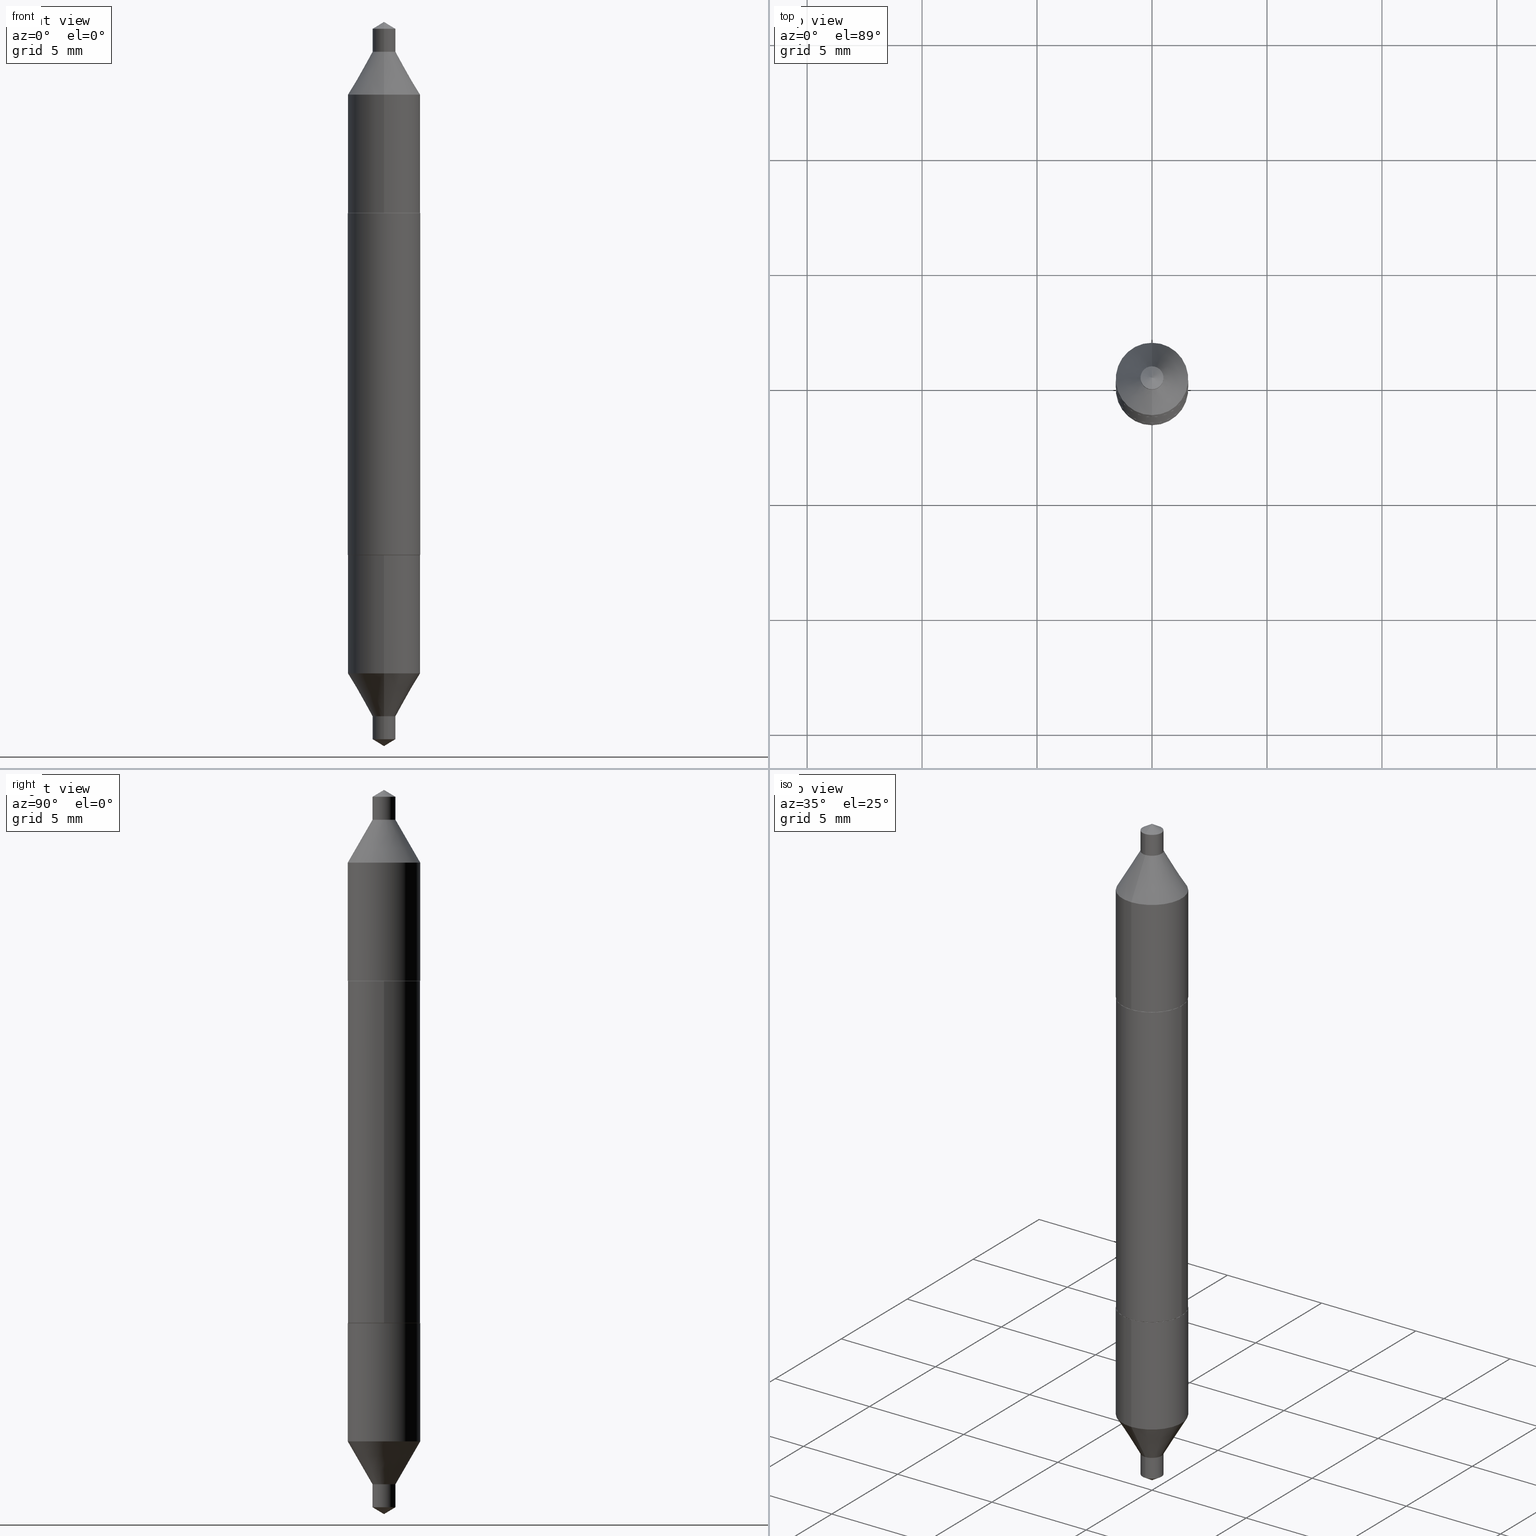
[diagram: canonical four-view strip — front | top / right | iso, engineering-drawing reading convention]
A machine part, canonical four-view strip (front | top / right | iso — engineering-drawing reading convention). The complete STEP part file that produces these views, byte-faithful:
ISO-10303-21;
HEADER;
FILE_DESCRIPTION (( 'STEP AP203' ),
    '1' );
FILE_NAME ('67039.STEP',
    '2024-04-19T15:18:00',
    ( '' ),
    ( '' ),
    'SwSTEP 2.0',
    'SolidWorks 2023',
    '' );
FILE_SCHEMA (( 'CONFIG_CONTROL_DESIGN' ));
ENDSEC;

DATA;
#1 = CARTESIAN_POINT ( 'NONE',  ( -7.165223602122446170E-30, 1.023004032281041126E-15, 0.2929999999999998717 ) ) ;
#2 = DIRECTION ( 'NONE',  ( 6.982962677686265922E-15, 1.000000000000000000, -3.442795074656859264E-15 ) ) ;
#3 = APPROVAL ( #108, 'UNSPECIFIED' ) ;
#4 = PERSON_AND_ORGANIZATION ( #171, #182 ) ;
#5 = CARTESIAN_POINT ( 'NONE',  ( -0.06150000000000003381, 1.444924659143990434E-15, 0.2929999999999998717 ) ) ;
#6 = DIRECTION ( 'NONE',  ( 1.000000000000000000, -6.982962677686263555E-15, 0.000000000000000000 ) ) ;
#7 = ORIENTED_EDGE ( 'NONE', *, *, #272, .F. ) ;
#8 = FACE_OUTER_BOUND ( 'NONE', #542, .T. ) ;
#9 = ORIENTED_EDGE ( 'NONE', *, *, #617, .T. ) ;
#10 = CARTESIAN_POINT ( 'NONE',  ( -4.329436860165556141E-16, -0.06199999999999897260, 0.2930000000000000937 ) ) ;
#11 = AXIS2_PLACEMENT_3D ( 'NONE', #539, #164, #657 ) ;
#12 = CARTESIAN_POINT ( 'NONE',  ( 0.000000000000000000, 0.000000000000000000, 0.000000000000000000 ) ) ;
#13 = VECTOR ( 'NONE', #197, 39.37007874015748143 ) ;
#14 = DIRECTION ( 'NONE',  ( -2.411471369612255613E-29, 3.540167603029431901E-15, 1.000000000000000000 ) ) ;
#15 = LINE ( 'NONE', #399, #373 ) ;
#16 = CARTESIAN_POINT ( 'NONE',  ( 1.351518105560852410E-16, 0.01970000000000198329, 0.5687999999999998613 ) ) ;
#17 = ORIENTED_EDGE ( 'NONE', *, *, #314, .F. ) ;
#18 = DIRECTION ( 'NONE',  ( 3.552713678800440581E-15, 0.4999999999999975575, 0.8660254037844400399 ) ) ;
#19 = CARTESIAN_POINT ( 'NONE',  ( 0.06150000000000003381, -1.452456236958746584E-15, -0.2929999999999998717 ) ) ;
#20 = EDGE_CURVE ( 'NONE', #309, #606, #231, .T. ) ;
#21 = ADVANCED_FACE ( 'NONE', ( #658 ), #488, .T. ) ;
#22 = DIRECTION ( 'NONE',  ( -2.479466242758017580E-29, 3.442795074656859264E-15, 1.000000000000000000 ) ) ;
#23 = AXIS2_PLACEMENT_3D ( 'NONE', #386, #393, #478 ) ;
#24 = DIRECTION ( 'NONE',  ( 0.7071067811865777708, -7.406550393246911599E-15, -0.7071067811865173747 ) ) ;
#25 = CIRCLE ( 'NONE', #530, 0.06200000000000004119 ) ;
#26 = CARTESIAN_POINT ( 'NONE',  ( -0.06200000000000004813, 4.405364961712623586E-16, 0.2924999999999998712 ) ) ;
#27 = CARTESIAN_POINT ( 'NONE',  ( -1.375643647504043493E-16, -0.01970000000000208737, -0.6081630458051568988 ) ) ;
#28 = APPROVAL ( #466, 'UNSPECIFIED' ) ;
#29 = EDGE_CURVE ( 'NONE', #83, #495, #390, .T. ) ;
#30 = CARTESIAN_POINT ( 'NONE',  ( 7.165223602122446170E-30, -1.023004032281041126E-15, -0.2929999999999998717 ) ) ;
#31 = APPLICATION_CONTEXT ( 'configuration controlled 3d designs of mechanical parts and assemblies' ) ;
#32 = VECTOR ( 'NONE', #533, 39.37007874015748143 ) ;
#33 = FACE_OUTER_BOUND ( 'NONE', #427, .T. ) ;
#34 = DIRECTION ( 'NONE',  ( 1.000000000000000000, -6.982962677686263555E-15, 0.000000000000000000 ) ) ;
#35 = VECTOR ( 'NONE', #191, 39.37007874015748854 ) ;
#36 = AXIS2_PLACEMENT_3D ( 'NONE', #361, #51, #260 ) ;
#37 =( CONVERSION_BASED_UNIT ( 'INCH', #504 ) LENGTH_UNIT ( ) NAMED_UNIT ( #555 ) );
#38 = CARTESIAN_POINT ( 'NONE',  ( 0.000000000000000000, 0.000000000000000000, 0.000000000000000000 ) ) ;
#39 = CARTESIAN_POINT ( 'NONE',  ( -1.375643647504053107E-16, -0.01970000000000195553, -0.5687999999999998613 ) ) ;
#40 = EDGE_CURVE ( 'NONE', #492, #41, #54, .T. ) ;
#41 = VERTEX_POINT ( 'NONE', #493 ) ;
#42 = DIRECTION ( 'NONE',  ( -2.411471369612255613E-29, 3.540167603029431901E-15, 1.000000000000000000 ) ) ;
#43 = FACE_OUTER_BOUND ( 'NONE', #536, .T. ) ;
#44 = AXIS2_PLACEMENT_3D ( 'NONE', #652, #102, #582 ) ;
#45 = AXIS2_PLACEMENT_3D ( 'NONE', #554, #80, #289 ) ;
#46 = FACE_OUTER_BOUND ( 'NONE', #685, .T. ) ;
#47 = CARTESIAN_POINT ( 'NONE',  ( -4.329436860165412667E-16, -0.06200000000000101957, -0.2929999999999997051 ) ) ;
#48 = DATE_AND_TIME ( #310, #441 ) ;
#49 = EDGE_CURVE ( 'NONE', #146, #595, #227, .T. ) ;
#50 = EDGE_CURVE ( 'NONE', #408, #609, #232, .T. ) ;
#51 = DIRECTION ( 'NONE',  ( -2.438088387897960049E-29, 3.491481338843145188E-15, 1.000000000000000000 ) ) ;
#52 = ORIENTED_EDGE ( 'NONE', *, *, #343, .F. ) ;
#53 = DIRECTION ( 'NONE',  ( 2.479466242758017300E-29, -3.442795074656859264E-15, -1.000000000000000000 ) ) ;
#54 = CIRCLE ( 'NONE', #436, 0.06200000000000004119 ) ;
#55 = VECTOR ( 'NONE', #256, 39.37007874015748143 ) ;
#56 = ORIENTED_EDGE ( 'NONE', *, *, #569, .F. ) ;
#57 = APPLICATION_PROTOCOL_DEFINITION ( 'international standard', 'config_control_design', 1994, #247 ) ;
#58 = APPROVAL_PERSON_ORGANIZATION ( #66, #3, #688 ) ;
#59 = FACE_OUTER_BOUND ( 'NONE', #327, .T. ) ;
#60 = DIRECTION ( 'NONE',  ( 2.411471369612255613E-29, -3.540167603029431901E-15, -1.000000000000000000 ) ) ;
#61 = CC_DESIGN_SECURITY_CLASSIFICATION ( #133, ( #183 ) ) ;
#62 = CALENDAR_DATE ( 2024, 19, 4 ) ;
#63 = CARTESIAN_POINT ( 'NONE',  ( 7.165223602122447572E-30, -1.023004032281041126E-15, -0.2929999999999998717 ) ) ;
#64 = ORIENTED_EDGE ( 'NONE', *, *, #585, .F. ) ;
#65 = VERTEX_POINT ( 'NONE', #27 ) ;
#66 = PERSON_AND_ORGANIZATION ( #171, #182 ) ;
#67 = DIRECTION ( 'NONE',  ( 1.000000000000000000, -6.982962677686265922E-15, 0.000000000000000000 ) ) ;
#68 = DIRECTION ( 'NONE',  ( -6.982962677686265133E-15, -1.000000000000000000, 3.466812174700845037E-15 ) ) ;
#69 = LINE ( 'NONE', #116, #624 ) ;
#70 = AXIS2_PLACEMENT_3D ( 'NONE', #549, #286, #384 ) ;
#71 = FACE_OUTER_BOUND ( 'NONE', #463, .T. ) ;
#72 = DIRECTION ( 'NONE',  ( -6.982962677686265922E-15, -1.000000000000000000, 3.304654831045479413E-15 ) ) ;
#73 = EDGE_CURVE ( 'NONE', #606, #309, #106, .T. ) ;
#74 = ORIENTED_EDGE ( 'NONE', *, *, #193, .T. ) ;
#75 = CARTESIAN_POINT ( 'NONE',  ( -1.375643647504053107E-16, -0.01970000000000195553, -0.5687999999999998613 ) ) ;
#76 = LINE ( 'NONE', #333, #604 ) ;
#77 = EDGE_LOOP ( 'NONE', ( #626, #623, #635 ) ) ;
#78 = CARTESIAN_POINT ( 'NONE',  ( 4.253508758618277676E-16, 0.06200000000000101957, 0.2929999999999997051 ) ) ;
#79 = CARTESIAN_POINT ( 'NONE',  ( -1.476529021931176994E-29, 2.138734036712539331E-15, 0.6081630458051570098 ) ) ;
#80 = DIRECTION ( 'NONE',  ( -2.445468806185136597E-29, 3.491481338843145583E-15, 1.000000000000000000 ) ) ;
#81 = ORIENTED_EDGE ( 'NONE', *, *, #516, .F. ) ;
#82 = DIRECTION ( 'NONE',  ( -6.982962677686265922E-15, -1.000000000000000000, 3.304654831045479808E-15 ) ) ;
#83 = VERTEX_POINT ( 'NONE', #125 ) ;
#84 = CLOSED_SHELL ( 'NONE', ( #584, #692, #335, #363, #357, #273, #119, #21, #375 ) ) ;
#85 = CIRCLE ( 'NONE', #376, 0.06199999999999999956 ) ;
#86 = CIRCLE ( 'NONE', #100, 0.01969999999999998141 ) ;
#87 = ORIENTED_EDGE ( 'NONE', *, *, #569, .T. ) ;
#88 = LINE ( 'NONE', #39, #35 ) ;
#89 = ADVANCED_FACE ( 'NONE', ( #8 ), #600, .T. ) ;
#90 = ORIENTED_EDGE ( 'NONE', *, *, #529, .F. ) ;
#91 = CARTESIAN_POINT ( 'NONE',  ( 1.351518105560918724E-16, 0.01970000000000100490, 0.2929999999999998161 ) ) ;
#92 = DIRECTION ( 'NONE',  ( -2.479466242758017580E-29, 3.442795074656859264E-15, 1.000000000000000000 ) ) ;
#93 = DIRECTION ( 'NONE',  ( -6.982962677686265133E-15, -1.000000000000000000, 3.466812174700844249E-15 ) ) ;
#94 = DIRECTION ( 'NONE',  ( -6.982962677686265922E-15, -1.000000000000000000, 3.304654831045479808E-15 ) ) ;
#95 = EDGE_CURVE ( 'NONE', #276, #41, #15, .T. ) ;
#96 = ORIENTED_EDGE ( 'NONE', *, *, #507, .F. ) ;
#97 = VECTOR ( 'NONE', #400, 39.37007874015748143 ) ;
#98 = APPLICATION_PROTOCOL_DEFINITION ( 'international standard', 'config_control_design', 1994, #31 ) ;
#99 = DIRECTION ( 'NONE',  ( -2.479466242758017580E-29, 3.442795074656859264E-15, 1.000000000000000000 ) ) ;
#100 = AXIS2_PLACEMENT_3D ( 'NONE', #178, #339, #668 ) ;
#101 = EDGE_LOOP ( 'NONE', ( #236, #189, #196, #120 ) ) ;
#102 = DIRECTION ( 'NONE',  ( -2.479466242758017580E-29, 3.442795074656859264E-15, 1.000000000000000000 ) ) ;
#103 = UNCERTAINTY_MEASURE_WITH_UNIT (LENGTH_MEASURE( 1.000000000000000082E-05 ), #37, 'distance_accuracy_value', 'NONE');
#104 = ORIENTED_EDGE ( 'NONE', *, *, #149, .F. ) ;
#105 = LINE ( 'NONE', #208, #640 ) ;
#106 = CIRCLE ( 'NONE', #316, 0.01969999999999998141 ) ;
#107 = ORIENTED_EDGE ( 'NONE', *, *, #175, .T. ) ;
#108 = APPROVAL_STATUS ( 'not_yet_approved' ) ;
#109 = CIRCLE ( 'NONE', #440, 0.01969999999999998141 ) ;
#110 = AXIS2_PLACEMENT_3D ( 'NONE', #395, #131, #388 ) ;
#111 = CARTESIAN_POINT ( 'NONE',  ( -7.165223602122447572E-30, 1.023004032281041126E-15, 0.2929999999999998717 ) ) ;
#112 = CONICAL_SURFACE ( 'NONE', #168, 65.52281426576841739, 1.029744258676654312 ) ;
#113 = VERTEX_POINT ( 'NONE', #302 ) ;
#114 = SECURITY_CLASSIFICATION_LEVEL ( 'unclassified' ) ;
#115 = DIRECTION ( 'NONE',  ( 2.411471369612255613E-29, -3.540167603029431901E-15, -1.000000000000000000 ) ) ;
#116 = CARTESIAN_POINT ( 'NONE',  ( 0.06150000000000003381, 5.935518276033354709E-16, 0.2929999999999998717 ) ) ;
#117 = CIRCLE ( 'NONE', #689, 0.06200000000000004119 ) ;
#118 = CC_DESIGN_PERSON_AND_ORGANIZATION_ASSIGNMENT ( #593, #475, ( #183 ) ) ;
#119 = ADVANCED_FACE ( 'NONE', ( #620 ), #694, .T. ) ;
#120 = ORIENTED_EDGE ( 'NONE', *, *, #592, .T. ) ;
#121 = CARTESIAN_POINT ( 'NONE',  ( -7.165223602122447572E-30, 1.023004032281041126E-15, 0.2929999999999998717 ) ) ;
#122 = CARTESIAN_POINT ( 'NONE',  ( -1.515034746991306573E-29, 2.166373763065083796E-15, 0.6199999999999999956 ) ) ;
#123 = CARTESIAN_POINT ( 'NONE',  ( 7.165223602122446170E-30, -1.023004032281041126E-15, -0.2929999999999998717 ) ) ;
#124 = FACE_OUTER_BOUND ( 'NONE', #280, .T. ) ;
#125 = CARTESIAN_POINT ( 'NONE',  ( 1.351518105560847726E-16, 0.01970000000000198329, 0.5687999999999998613 ) ) ;
#126 = ORIENTED_EDGE ( 'NONE', *, *, #484, .T. ) ;
#127 = FACE_OUTER_BOUND ( 'NONE', #424, .T. ) ;
#128 = ADVANCED_FACE ( 'NONE', ( #43 ), #253, .T. ) ;
#129 = CLOSED_SHELL ( 'NONE', ( #596, #163, #138, #249, #387, #89, #397, #264 ) ) ;
#130 = ORIENTED_EDGE ( 'NONE', *, *, #462, .T. ) ;
#131 = DIRECTION ( 'NONE',  ( -2.411471369612255613E-29, 3.540167603029431901E-15, 1.000000000000000000 ) ) ;
#132 = AXIS2_PLACEMENT_3D ( 'NONE', #348, #242, #246 ) ;
#133 = SECURITY_CLASSIFICATION ( '', '', #114 ) ;
#134 = LINE ( 'NONE', #91, #97 ) ;
#135 =( LENGTH_UNIT ( ) NAMED_UNIT ( * ) SI_UNIT ( $, .METRE. ) );
#136 = VECTOR ( 'NONE', #238, 39.37007874015748143 ) ;
#137 = EDGE_CURVE ( 'NONE', #513, #355, #307, .T. ) ;
#138 = ADVANCED_FACE ( 'NONE', ( #686 ), #151, .T. ) ;
#139 = CYLINDRICAL_SURFACE ( 'NONE', #132, 0.01969999999999998141 ) ;
#140 = LINE ( 'NONE', #677, #662 ) ;
#141 = CIRCLE ( 'NONE', #341, 0.01969999999999998488 ) ;
#142 = CIRCLE ( 'NONE', #605, 0.06199999999999999956 ) ;
#143 = EDGE_LOOP ( 'NONE', ( #429, #391, #413, #579 ) ) ;
#144 = CARTESIAN_POINT ( 'NONE',  ( 4.253508758618253517E-16, 0.06200000000000101957, 0.2929999999999997051 ) ) ;
#145 = DIRECTION ( 'NONE',  ( -2.479466242758017580E-29, 3.442795074656859264E-15, 1.000000000000000000 ) ) ;
#146 = VERTEX_POINT ( 'NONE', #679 ) ;
#147 = CARTESIAN_POINT ( 'NONE',  ( -7.165223602122447572E-30, 1.023004032281041126E-15, 0.2929999999999998717 ) ) ;
#148 = ORIENTED_EDGE ( 'NONE', *, *, #617, .F. ) ;
#149 = EDGE_CURVE ( 'NONE', #606, #408, #458, .T. ) ;
#150 = VERTEX_POINT ( 'NONE', #450 ) ;
#151 = CONICAL_SURFACE ( 'NONE', #262, 0.06150000000000003381, 0.7853981633974910226 ) ;
#152 = DIRECTION ( 'NONE',  ( -2.411471369612255613E-29, 3.540167603029431901E-15, 1.000000000000000000 ) ) ;
#153 = ORIENTED_EDGE ( 'NONE', *, *, #403, .F. ) ;
#154 = ORIENTED_EDGE ( 'NONE', *, *, #541, .F. ) ;
#155 = AXIS2_PLACEMENT_3D ( 'NONE', #147, #571, #304 ) ;
#156 = PERSON_AND_ORGANIZATION ( #171, #182 ) ;
#157 = DIRECTION ( 'NONE',  ( 2.438088387897960049E-29, -3.491481338843145188E-15, -1.000000000000000000 ) ) ;
#158 = CARTESIAN_POINT ( 'NONE',  ( 1.537443767299333479E-29, -2.134532946287252436E-15, -0.6199999999999999956 ) ) ;
#159 = ORIENTED_EDGE ( 'NONE', *, *, #175, .F. ) ;
#160 = DIRECTION ( 'NONE',  ( -2.479466242758017580E-29, 3.442795074656859264E-15, 1.000000000000000000 ) ) ;
#161 = FACE_OUTER_BOUND ( 'NONE', #101, .T. ) ;
#162 = COORDINATED_UNIVERSAL_TIME_OFFSET ( 5, 0, .BEHIND. ) ;
#163 = ADVANCED_FACE ( 'NONE', ( #297 ), #510, .T. ) ;
#164 = DIRECTION ( 'NONE',  ( 2.411471369612255613E-29, -3.540167603029431901E-15, -1.000000000000000000 ) ) ;
#165 = AXIS2_PLACEMENT_3D ( 'NONE', #12, #330, #487 ) ;
#166 = ORIENTED_EDGE ( 'NONE', *, *, #474, .T. ) ;
#167 = CALENDAR_DATE ( 2024, 19, 4 ) ;
#168 = AXIS2_PLACEMENT_3D ( 'NONE', #326, #60, #423 ) ;
#169 = LINE ( 'NONE', #699, #267 ) ;
#170 = EDGE_LOOP ( 'NONE', ( #443, #473, #580, #570 ) ) ;
#171 = PERSON ( 'UNSPECIFIED', 'UNSPECIFIED', 'UNSPECIFIED', ('UNSPECIFIED'), ('UNSPECIFIED'), ('UNSPECIFIED') ) ;
#172 = ORIENTED_EDGE ( 'NONE', *, *, #642, .F. ) ;
#173 = DIRECTION ( 'NONE',  ( 1.000000000000000000, -6.982962677686263555E-15, 0.000000000000000000 ) ) ;
#174 = CC_DESIGN_PERSON_AND_ORGANIZATION_ASSIGNMENT ( #575, #537, ( #591 ) ) ;
#175 = EDGE_CURVE ( 'NONE', #492, #113, #140, .T. ) ;
#176 = DIRECTION ( 'NONE',  ( 3.430248998885748032E-15, 0.4999999999999914513, -0.8660254037844434816 ) ) ;
#177 = EDGE_LOOP ( 'NONE', ( #680, #567, #172, #64 ) ) ;
#178 = CARTESIAN_POINT ( 'NONE',  ( 1.497958493250930827E-29, -2.108045814092890395E-15, -0.6081630458051570098 ) ) ;
#179 = EDGE_LOOP ( 'NONE', ( #687, #402, #546, #221 ) ) ;
#180 = CARTESIAN_POINT ( 'NONE',  ( -0.06150000000000003381, -5.833710226144682183E-16, -0.2929999999999998717 ) ) ;
#181 = CARTESIAN_POINT ( 'NONE',  ( -7.165223602122447572E-30, 1.023004032281041126E-15, 0.2929999999999998717 ) ) ;
#182 = ORGANIZATION ( 'UNSPECIFIED', 'UNSPECIFIED', '' ) ;
#183 = PRODUCT_DEFINITION_FORMATION_WITH_SPECIFIED_SOURCE ( 'ANY', '', #591, .NOT_KNOWN. ) ;
#184 = ORIENTED_EDGE ( 'NONE', *, *, #281, .F. ) ;
#185 = CARTESIAN_POINT ( 'NONE',  ( 1.399769189447545683E-16, 0.01969999999999787199, -0.6081630458051571209 ) ) ;
#186 = ORIENTED_EDGE ( 'NONE', *, *, #343, .T. ) ;
#187 = LINE ( 'NONE', #19, #674 ) ;
#188 = DESIGN_CONTEXT ( 'detailed design', #31, 'design' ) ;
#189 = ORIENTED_EDGE ( 'NONE', *, *, #667, .F. ) ;
#190 = AXIS2_PLACEMENT_3D ( 'NONE', #200, #294, #82 ) ;
#191 = DIRECTION ( 'NONE',  ( -3.491481338843116000E-15, -0.4999999999999914513, 0.8660254037844434816 ) ) ;
#192 = CC_DESIGN_PERSON_AND_ORGANIZATION_ASSIGNMENT ( #156, #368, ( #183 ) ) ;
#193 = EDGE_CURVE ( 'NONE', #41, #492, #447, .T. ) ;
#194 =( NAMED_UNIT ( * ) PLANE_ANGLE_UNIT ( ) SI_UNIT ( $, .RADIAN. ) );
#195 = DIRECTION ( 'NONE',  ( -2.479466242758017580E-29, 3.442795074656859264E-15, 1.000000000000000000 ) ) ;
#196 = ORIENTED_EDGE ( 'NONE', *, *, #50, .T. ) ;
#197 = DIRECTION ( 'NONE',  ( -2.479466242758017580E-29, 3.442795074656859264E-15, 1.000000000000000000 ) ) ;
#198 = CONICAL_SURFACE ( 'NONE', #681, 0.01969999999999998488, 0.5235987755982925984 ) ;
#199 = ORIENTED_EDGE ( 'NONE', *, *, #50, .F. ) ;
#200 = CARTESIAN_POINT ( 'NONE',  ( 7.165223602122447572E-30, -1.023004032281041126E-15, -0.2929999999999998717 ) ) ;
#201 = PRODUCT_RELATED_PRODUCT_CATEGORY ( 'detail', '', ( #591 ) ) ;
#202 = DIRECTION ( 'NONE',  ( 2.411471369612255613E-29, -3.540167603029431901E-15, -1.000000000000000000 ) ) ;
#203 = ORIENTED_EDGE ( 'NONE', *, *, #541, .T. ) ;
#204 = DATE_TIME_ROLE ( 'classification_date' ) ;
#205 = VERTEX_POINT ( 'NONE', #320 ) ;
#206 = PERSON_AND_ORGANIZATION ( #171, #182 ) ;
#207 = AXIS2_PLACEMENT_3D ( 'NONE', #248, #346, #515 ) ;
#208 = CARTESIAN_POINT ( 'NONE',  ( -0.06200000000000003425, 4.405364961712623586E-16, -3.049739755958042975E-30 ) ) ;
#209 = EDGE_LOOP ( 'NONE', ( #349, #489, #613 ) ) ;
#210 = DATE_AND_TIME ( #167, #531 ) ;
#211 = DIRECTION ( 'NONE',  ( -2.445468806185136597E-29, 3.491481338843145583E-15, 1.000000000000000000 ) ) ;
#212 = ORIENTED_EDGE ( 'NONE', *, *, #284, .F. ) ;
#213 = EDGE_LOOP ( 'NONE', ( #352, #412, #455, #159 ) ) ;
#214 = EDGE_CURVE ( 'NONE', #269, #364, #633, .T. ) ;
#215 =( NAMED_UNIT ( * ) SI_UNIT ( $, .STERADIAN. ) SOLID_ANGLE_UNIT ( ) );
#216 = CYLINDRICAL_SURFACE ( 'NONE', #11, 0.06199999999999999956 ) ;
#217 = PRODUCT_DEFINITION_SHAPE ( 'NONE', 'NONE',  #313 ) ;
#218 = PERSON_AND_ORGANIZATION_ROLE ( 'creator' ) ;
#219 = CARTESIAN_POINT ( 'NONE',  ( 1.351518105560842549E-16, 0.01970000000000211859, 0.6081630458051568988 ) ) ;
#220 = CARTESIAN_POINT ( 'NONE',  ( 4.405364961712692118E-16, 0.06199999999999897260, -0.2930000000000000937 ) ) ;
#221 = ORIENTED_EDGE ( 'NONE', *, *, #137, .F. ) ;
#222 = CIRCLE ( 'NONE', #110, 0.06200000000000000649 ) ;
#223 = CARTESIAN_POINT ( 'NONE',  ( -4.329436860165556141E-16, -0.06199999999999897260, 0.2930000000000000937 ) ) ;
#224 = APPROVAL ( #409, 'UNSPECIFIED' ) ;
#225 = EDGE_CURVE ( 'NONE', #598, #431, #644, .T. ) ;
#226 = DIRECTION ( 'NONE',  ( -6.982962677686265922E-15, -1.000000000000000000, 3.304654831045479808E-15 ) ) ;
#227 = LINE ( 'NONE', #220, #589 ) ;
#228 = ORIENTED_EDGE ( 'NONE', *, *, #508, .F. ) ;
#229 = DIRECTION ( 'NONE',  ( 6.982962677686265922E-15, 1.000000000000000000, -3.540167603029431901E-15 ) ) ;
#230 = DIRECTION ( 'NONE',  ( -2.411471369612255613E-29, 3.540167603029431901E-15, 1.000000000000000000 ) ) ;
#231 = CIRCLE ( 'NONE', #661, 0.01969999999999998141 ) ;
#232 = LINE ( 'NONE', #550, #136 ) ;
#233 = EDGE_LOOP ( 'NONE', ( #153, #380, #258 ) ) ;
#234 = CARTESIAN_POINT ( 'NONE',  ( -7.165223602122447572E-30, 1.023004032281041126E-15, 0.2929999999999998717 ) ) ;
#235 = CIRCLE ( 'NONE', #362, 0.06150000000000003381 ) ;
#236 = ORIENTED_EDGE ( 'NONE', *, *, #29, .F. ) ;
#237 = DIRECTION ( 'NONE',  ( -2.445468806185136597E-29, 3.491481338843145583E-15, 1.000000000000000000 ) ) ;
#238 = DIRECTION ( 'NONE',  ( -3.491481338843074191E-15, -0.4999999999999976685, -0.8660254037844400399 ) ) ;
#239 = DIRECTION ( 'NONE',  ( -2.445468806185136597E-29, 3.491481338843145583E-15, 1.000000000000000000 ) ) ;
#240 = CIRCLE ( 'NONE', #588, 0.06150000000000003381 ) ;
#241 = AXIS2_PLACEMENT_3D ( 'NONE', #38, #245, #453 ) ;
#242 = DIRECTION ( 'NONE',  ( -2.479466242758017580E-29, 3.442795074656859264E-15, 1.000000000000000000 ) ) ;
#243 = EDGE_CURVE ( 'NONE', #65, #269, #305, .T. ) ;
#244 = AXIS2_PLACEMENT_3D ( 'NONE', #671, #559, #675 ) ;
#245 = DIRECTION ( 'NONE',  ( -2.445468806185136597E-29, 3.491481338843145583E-15, 1.000000000000000000 ) ) ;
#246 = DIRECTION ( 'NONE',  ( -6.982962677686265133E-15, -1.000000000000000000, 3.466812174700845037E-15 ) ) ;
#247 = APPLICATION_CONTEXT ( 'configuration controlled 3d designs of mechanical parts and assemblies' ) ;
#248 = CARTESIAN_POINT ( 'NONE',  ( 9.343474420319446773E-28, -1.371960384461516369E-13, -38.75007874015748399 ) ) ;
#249 = ADVANCED_FACE ( 'NONE', ( #410 ), #690, .T. ) ;
#250 = ORIENTED_EDGE ( 'NONE', *, *, #529, .T. ) ;
#251 = CARTESIAN_POINT ( 'NONE',  ( 1.399769189447467290E-16, 0.01969999999999895446, -0.2929999999999999272 ) ) ;
#252 = CARTESIAN_POINT ( 'NONE',  ( -1.476529021931176994E-29, 2.138734036712539331E-15, 0.6081630458051570098 ) ) ;
#253 = CYLINDRICAL_SURFACE ( 'NONE', #560, 0.06199999999999999956 ) ;
#254 = CONICAL_SURFACE ( 'NONE', #469, 0.06150000000000003381, 0.7853981633974910226 ) ;
#255 = DIRECTION ( 'NONE',  ( -6.982962677686265922E-15, -1.000000000000000000, 3.304654831045479413E-15 ) ) ;
#256 = DIRECTION ( 'NONE',  ( -2.479466242758017580E-29, 3.442795074656859264E-15, 1.000000000000000000 ) ) ;
#257 = ORIENTED_EDGE ( 'NONE', *, *, #291, .F. ) ;
#258 = ORIENTED_EDGE ( 'NONE', *, *, #20, .T. ) ;
#259 = APPROVAL_DATE_TIME ( #48, #224 ) ;
#260 = DIRECTION ( 'NONE',  ( -1.000000000000000000, 6.982962677686265922E-15, -4.876176775795935793E-29 ) ) ;
#261 = EDGE_LOOP ( 'NONE', ( #323, #416, #186, #278 ) ) ;
#262 = AXIS2_PLACEMENT_3D ( 'NONE', #566, #299, #34 ) ;
#263 = DIRECTION ( 'NONE',  ( -2.479466242758017580E-29, 3.442795074656859264E-15, 1.000000000000000000 ) ) ;
#264 = ADVANCED_FACE ( 'NONE', ( #59 ), #465, .T. ) ;
#265 = EDGE_CURVE ( 'NONE', #431, #113, #117, .T. ) ;
#266 = CIRCLE ( 'NONE', #428, 0.06199999999999999956 ) ;
#267 = VECTOR ( 'NONE', #594, 39.37007874015748143 ) ;
#268 = CARTESIAN_POINT ( 'NONE',  ( -7.165223602122446170E-30, 1.023004032281041126E-15, 0.2929999999999998717 ) ) ;
#269 = VERTEX_POINT ( 'NONE', #75 ) ;
#270 = CALENDAR_DATE ( 2024, 19, 4 ) ;
#271 = FACE_OUTER_BOUND ( 'NONE', #170, .T. ) ;
#272 = EDGE_CURVE ( 'NONE', #364, #146, #383, .T. ) ;
#273 = ADVANCED_FACE ( 'NONE', ( #71 ), #647, .F. ) ;
#274 = VERTEX_POINT ( 'NONE', #435 ) ;
#275 = CARTESIAN_POINT ( 'NONE',  ( 7.165223602122446170E-30, -1.023004032281041126E-15, -0.2929999999999998717 ) ) ;
#276 = VERTEX_POINT ( 'NONE', #180 ) ;
#277 = DIRECTION ( 'NONE',  ( -6.982962677686265922E-15, -1.000000000000000000, 3.304654831045479808E-15 ) ) ;
#278 = ORIENTED_EDGE ( 'NONE', *, *, #557, .T. ) ;
#279 = DIRECTION ( 'NONE',  ( 1.000000000000000000, -6.982962677686265922E-15, 0.000000000000000000 ) ) ;
#280 = EDGE_LOOP ( 'NONE', ( #148, #300, #486, #367 ) ) ;
#281 = EDGE_CURVE ( 'NONE', #205, #276, #240, .T. ) ;
#282 = AXIS2_PLACEMENT_3D ( 'NONE', #121, #332, #229 ) ;
#283 = DIRECTION ( 'NONE',  ( -5.985567269335942857E-15, -0.8571673007021103352, 0.5150380749100572642 ) ) ;
#284 = EDGE_CURVE ( 'NONE', #522, #468, #317, .T. ) ;
#285 = DIRECTION ( 'NONE',  ( -2.445468806185136597E-29, 3.491481338843145583E-15, 1.000000000000000000 ) ) ;
#286 = DIRECTION ( 'NONE',  ( -2.479466242758017580E-29, 3.442795074656859264E-15, 1.000000000000000000 ) ) ;
#287 = CONICAL_SURFACE ( 'NONE', #697, 65.52281426576840317, 1.029744258676654312 ) ;
#288 = DIRECTION ( 'NONE',  ( -6.982962677686265133E-15, -1.000000000000000000, 3.466812174700845037E-15 ) ) ;
#289 = DIRECTION ( 'NONE',  ( 1.000000000000000000, -6.982962677686265922E-15, 0.000000000000000000 ) ) ;
#290 = EDGE_CURVE ( 'NONE', #150, #309, #169, .T. ) ;
#291 = EDGE_CURVE ( 'NONE', #41, #431, #105, .T. ) ;
#292 = CARTESIAN_POINT ( 'NONE',  ( -1.381606163951305151E-29, 1.999382257196558882E-15, 0.5687999999999999723 ) ) ;
#293 = VECTOR ( 'NONE', #145, 39.37007874015748143 ) ;
#294 = DIRECTION ( 'NONE',  ( -2.479466242758017580E-29, 3.442795074656859264E-15, 1.000000000000000000 ) ) ;
#295 = CIRCLE ( 'NONE', #417, 0.06200000000000000649 ) ;
#296 = VECTOR ( 'NONE', #445, 39.37007874015748143 ) ;
#297 = FACE_OUTER_BOUND ( 'NONE', #213, .T. ) ;
#298 = CARTESIAN_POINT ( 'NONE',  ( -7.165223602122446170E-30, 1.023004032281041126E-15, 0.2929999999999998717 ) ) ;
#299 = DIRECTION ( 'NONE',  ( -2.445468806185136597E-29, 3.491481338843145583E-15, 1.000000000000000000 ) ) ;
#300 = ORIENTED_EDGE ( 'NONE', *, *, #314, .T. ) ;
#301 = CARTESIAN_POINT ( 'NONE',  ( -0.06150000000000003381, 1.445766913308722634E-15, 0.2929999999999998717 ) ) ;
#302 = CARTESIAN_POINT ( 'NONE',  ( 0.06200000000000004119, 5.883146055950708615E-16, 0.2924999999999998712 ) ) ;
#303 = CIRCLE ( 'NONE', #70, 0.01969999999999998488 ) ;
#304 = DIRECTION ( 'NONE',  ( -6.982962677686265133E-15, -1.000000000000000000, 3.466812174700845037E-15 ) ) ;
#305 = LINE ( 'NONE', #370, #55 ) ;
#306 = AXIS2_PLACEMENT_3D ( 'NONE', #111, #534, #576 ) ;
#307 = LINE ( 'NONE', #47, #293 ) ;
#308 = AXIS2_PLACEMENT_3D ( 'NONE', #234, #230, #483 ) ;
#309 = VERTEX_POINT ( 'NONE', #219 ) ;
#310 = CALENDAR_DATE ( 2024, 19, 4 ) ;
#311 = CARTESIAN_POINT ( 'NONE',  ( 1.497958493250930827E-29, -2.108045814092890395E-15, -0.6081630458051570098 ) ) ;
#312 = VERTEX_POINT ( 'NONE', #10 ) ;
#313 = PRODUCT_DEFINITION ( 'UNKNOWN', '', #183, #188 ) ;
#314 = EDGE_CURVE ( 'NONE', #468, #65, #109, .T. ) ;
#315 = CYLINDRICAL_SURFACE ( 'NONE', #306, 0.06199999999999999956 ) ;
#316 = AXIS2_PLACEMENT_3D ( 'NONE', #79, #499, #288 ) ;
#317 = LINE ( 'NONE', #158, #544 ) ;
#318 = CIRCLE ( 'NONE', #308, 0.06199999999999999956 ) ;
#319 = COORDINATED_UNIVERSAL_TIME_OFFSET ( 5, 0, .BEHIND. ) ;
#320 = CARTESIAN_POINT ( 'NONE',  ( 0.06150000000000003381, -1.452456236958746584E-15, -0.2929999999999998717 ) ) ;
#321 = DIRECTION ( 'NONE',  ( 1.000000000000000000, -6.982962677686263555E-15, 0.000000000000000000 ) ) ;
#322 = CC_DESIGN_PERSON_AND_ORGANIZATION_ASSIGNMENT ( #4, #646, ( #133 ) ) ;
#323 = ORIENTED_EDGE ( 'NONE', *, *, #474, .F. ) ;
#324 = COORDINATED_UNIVERSAL_TIME_OFFSET ( 5, 0, .BEHIND. ) ;
#325 = DIRECTION ( 'NONE',  ( 1.000000000000000000, -6.982962677686265922E-15, 0.000000000000000000 ) ) ;
#326 = CARTESIAN_POINT ( 'NONE',  ( 9.343474420319446773E-28, -1.371960384461516369E-13, -38.75007874015748399 ) ) ;
#327 = EDGE_LOOP ( 'NONE', ( #573, #228, #250, #459 ) ) ;
#328 = ORIENTED_EDGE ( 'NONE', *, *, #507, .T. ) ;
#329 = DIRECTION ( 'NONE',  ( -2.479466242758017580E-29, 3.442795074656859264E-15, 1.000000000000000000 ) ) ;
#330 = DIRECTION ( 'NONE',  ( -2.445468806185136597E-29, 3.491481338843145583E-15, 1.000000000000000000 ) ) ;
#331 = EDGE_LOOP ( 'NONE', ( #7, #683, #509, #96 ) ) ;
#332 = DIRECTION ( 'NONE',  ( -2.411471369612255053E-29, 3.540167603029431901E-15, 1.000000000000000000 ) ) ;
#333 = CARTESIAN_POINT ( 'NONE',  ( 1.517346572678262628E-29, -2.163063097100416632E-15, -0.6199999999999999956 ) ) ;
#334 = DIRECTION ( 'NONE',  ( -2.479466242758017580E-29, 3.442795074656859264E-15, 1.000000000000000000 ) ) ;
#335 = ADVANCED_FACE ( 'NONE', ( #464 ), #112, .T. ) ;
#336 = EDGE_CURVE ( 'NONE', #598, #274, #654, .T. ) ;
#337 = EDGE_LOOP ( 'NONE', ( #389, #631, #477, #641 ) ) ;
#338 = CARTESIAN_POINT ( 'NONE',  ( 1.537269070509970676E-29, -2.134532946287252436E-15, -0.6199999999999999956 ) ) ;
#339 = DIRECTION ( 'NONE',  ( -2.479466242758017580E-29, 3.442795074656859264E-15, 1.000000000000000000 ) ) ;
#340 = CONICAL_SURFACE ( 'NONE', #44, 0.01969999999999998488, 0.5235987755982925984 ) ;
#341 = AXIS2_PLACEMENT_3D ( 'NONE', #292, #42, #619 ) ;
#342 = EDGE_CURVE ( 'NONE', #355, #595, #142, .T. ) ;
#343 = EDGE_CURVE ( 'NONE', #609, #312, #366, .T. ) ;
#344 = DIRECTION ( 'NONE',  ( -2.479466242758017580E-29, 3.442795074656859264E-15, 1.000000000000000000 ) ) ;
#345 = AXIS2_PLACEMENT_3D ( 'NONE', #523, #698, #572 ) ;
#346 = DIRECTION ( 'NONE',  ( 2.411471369612255613E-29, -3.540167603029431901E-15, -1.000000000000000000 ) ) ;
#347 = ORIENTED_EDGE ( 'NONE', *, *, #20, .F. ) ;
#348 = CARTESIAN_POINT ( 'NONE',  ( 7.165223602122447572E-30, -1.023004032281041126E-15, -0.2929999999999998717 ) ) ;
#349 = ORIENTED_EDGE ( 'NONE', *, *, #290, .F. ) ;
#350 = AXIS2_PLACEMENT_3D ( 'NONE', #514, #344, #556 ) ;
#351 = LOCAL_TIME ( 11, 18, 0.000000000000000000, #532 ) ;
#352 = ORIENTED_EDGE ( 'NONE', *, *, #40, .T. ) ;
#353 = DIRECTION ( 'NONE',  ( -2.411471369612255613E-29, 3.540167603029431901E-15, 1.000000000000000000 ) ) ;
#354 = ADVANCED_FACE ( 'NONE', ( #639 ), #645, .F. ) ;
#355 = VERTEX_POINT ( 'NONE', #648 ) ;
#356 = DIRECTION ( 'NONE',  ( 2.445468806185136597E-29, -3.491481338843145583E-15, -1.000000000000000000 ) ) ;
#357 = ADVANCED_FACE ( 'NONE', ( #421 ), #216, .T. ) ;
#358 = EDGE_LOOP ( 'NONE', ( #433, #372, #656, #90 ) ) ;
#359 = ADVANCED_FACE ( 'NONE', ( #415 ), #340, .T. ) ;
#360 = APPROVAL_DATE_TIME ( #377, #28 ) ;
#361 = CARTESIAN_POINT ( 'NONE',  ( -6.029170141513745579E-30, 1.185693353854949397E-15, 0.2929999999999998717 ) ) ;
#362 = AXIS2_PLACEMENT_3D ( 'NONE', #30, #239, #173 ) ;
#363 = ADVANCED_FACE ( 'NONE', ( #374 ), #315, .T. ) ;
#364 = VERTEX_POINT ( 'NONE', #379 ) ;
#365 = APPROVAL_ROLE ( '' ) ;
#366 = LINE ( 'NONE', #223, #551 ) ;
#367 = ORIENTED_EDGE ( 'NONE', *, *, #434, .F. ) ;
#368 = PERSON_AND_ORGANIZATION_ROLE ( 'design_supplier' ) ;
#369 = MANIFOLD_SOLID_BREP ( 'Body-Move/Copy2[1]', #632 ) ;
#370 = CARTESIAN_POINT ( 'NONE',  ( -1.375643647504121393E-16, -0.01970000000000100490, -0.2929999999999998161 ) ) ;
#371 = CARTESIAN_POINT ( 'NONE',  ( -1.381606163951305151E-29, 1.999382257196558882E-15, 0.5687999999999999723 ) ) ;
#372 = ORIENTED_EDGE ( 'NONE', *, *, #225, .T. ) ;
#373 = VECTOR ( 'NONE', #519, 39.37007874015748143 ) ;
#374 = FACE_OUTER_BOUND ( 'NONE', #587, .T. ) ;
#375 = ADVANCED_FACE ( 'NONE', ( #161 ), #518, .T. ) ;
#376 = AXIS2_PLACEMENT_3D ( 'NONE', #181, #14, #226 ) ;
#377 = DATE_AND_TIME ( #270, #351 ) ;
#378 = DIRECTION ( 'NONE',  ( 2.445468806185136597E-29, -3.491481338843145583E-15, -1.000000000000000000 ) ) ;
#379 = CARTESIAN_POINT ( 'NONE',  ( 1.399769189447545683E-16, 0.01969999999999801424, -0.5687999999999999723 ) ) ;
#380 = ORIENTED_EDGE ( 'NONE', *, *, #290, .T. ) ;
#381 = DIRECTION ( 'NONE',  ( 2.411471369612255613E-29, -3.540167603029431901E-15, -1.000000000000000000 ) ) ;
#382 = CARTESIAN_POINT ( 'NONE',  ( 7.152996258091520958E-30, -1.021258291611619622E-15, -0.2924999999999998712 ) ) ;
#383 = LINE ( 'NONE', #602, #676 ) ;
#384 = DIRECTION ( 'NONE',  ( -6.982962677686265133E-15, -1.000000000000000000, 3.466812174700844249E-15 ) ) ;
#385 = AXIS2_PLACEMENT_3D ( 'NONE', #638, #157, #527 ) ;
#386 = CARTESIAN_POINT ( 'NONE',  ( -7.165223602122447572E-30, 1.023004032281041126E-15, 0.2929999999999998717 ) ) ;
#387 = ADVANCED_FACE ( 'NONE', ( #271 ), #418, .T. ) ;
#388 = DIRECTION ( 'NONE',  ( -6.982962677686265922E-15, -1.000000000000000000, 3.304654831045479413E-15 ) ) ;
#389 = ORIENTED_EDGE ( 'NONE', *, *, #612, .F. ) ;
#390 = LINE ( 'NONE', #16, #622 ) ;
#391 = ORIENTED_EDGE ( 'NONE', *, *, #95, .T. ) ;
#392 = DIRECTION ( 'NONE',  ( -6.982962677686267499E-15, -1.000000000000000000, 3.468864327941595792E-15 ) ) ;
#393 = DIRECTION ( 'NONE',  ( 2.411471369612255613E-29, -3.540167603029431901E-15, -1.000000000000000000 ) ) ;
#394 = ORIENTED_EDGE ( 'NONE', *, *, #508, .T. ) ;
#395 = CARTESIAN_POINT ( 'NONE',  ( -1.204927907478374845E-29, 1.740009225608063244E-15, 0.4955342508398353774 ) ) ;
#396 = CC_DESIGN_PERSON_AND_ORGANIZATION_ASSIGNMENT ( #206, #218, ( #313 ) ) ;
#397 = ADVANCED_FACE ( 'NONE', ( #430 ), #480, .T. ) ;
#398 = FACE_OUTER_BOUND ( 'NONE', #358, .T. ) ;
#399 = CARTESIAN_POINT ( 'NONE',  ( -0.06150000000000003381, -5.860202497885792222E-16, -0.2929999999999998717 ) ) ;
#400 = DIRECTION ( 'NONE',  ( 2.411471369612255613E-29, -3.540167603029431901E-15, -1.000000000000000000 ) ) ;
#401 = DIRECTION ( 'NONE',  ( -2.445468806185136877E-29, 3.491481338843145188E-15, 1.000000000000000000 ) ) ;
#402 = ORIENTED_EDGE ( 'NONE', *, *, #49, .T. ) ;
#403 = EDGE_CURVE ( 'NONE', #150, #606, #691, .T. ) ;
#404 = DIRECTION ( 'NONE',  ( -6.982962677686265133E-15, -1.000000000000000000, 3.466812174700844249E-15 ) ) ;
#405 = AXIS2_PLACEMENT_3D ( 'NONE', #547, #442, #611 ) ;
#406 = EDGE_LOOP ( 'NONE', ( #525, #627 ) ) ;
#407 = FACE_OUTER_BOUND ( 'NONE', #634, .T. ) ;
#408 = VERTEX_POINT ( 'NONE', #446 ) ;
#409 = APPROVAL_STATUS ( 'not_yet_approved' ) ;
#410 = FACE_OUTER_BOUND ( 'NONE', #535, .T. ) ;
#411 = EDGE_CURVE ( 'NONE', #65, #468, #86, .T. ) ;
#412 = ORIENTED_EDGE ( 'NONE', *, *, #291, .T. ) ;
#413 = ORIENTED_EDGE ( 'NONE', *, *, #40, .F. ) ;
#414 = DATE_AND_TIME ( #62, #470 ) ;
#415 = FACE_OUTER_BOUND ( 'NONE', #177, .T. ) ;
#416 = ORIENTED_EDGE ( 'NONE', *, *, #592, .F. ) ;
#417 = AXIS2_PLACEMENT_3D ( 'NONE', #568, #353, #454 ) ;
#418 = CONICAL_SURFACE ( 'NONE', #505, 0.06150000000000003381, 0.7853981633974910226 ) ;
#419 = CC_DESIGN_APPROVAL ( #3, ( #313 ) ) ;
#420 = CARTESIAN_POINT ( 'NONE',  ( 1.400359149964906176E-29, -1.972526913871403021E-15, -0.5687999999999999723 ) ) ;
#421 = FACE_OUTER_BOUND ( 'NONE', #261, .T. ) ;
#422 = APPROVAL_DATE_TIME ( #210, #3 ) ;
#423 = DIRECTION ( 'NONE',  ( -6.982962677686264344E-15, -1.000000000000000000, 3.535573257325086449E-15 ) ) ;
#424 = EDGE_LOOP ( 'NONE', ( #56, #701, #130, #199 ) ) ;
#425 = CARTESIAN_POINT ( 'NONE',  ( 0.000000000000000000, 0.000000000000000000, 0.000000000000000000 ) ) ;
#426 = DIRECTION ( 'NONE',  ( 1.000000000000000000, -6.982962677686265922E-15, 0.000000000000000000 ) ) ;
#427 = EDGE_LOOP ( 'NONE', ( #695, #9, #653, #548 ) ) ;
#428 = AXIS2_PLACEMENT_3D ( 'NONE', #491, #329, #277 ) ;
#429 = ORIENTED_EDGE ( 'NONE', *, *, #281, .T. ) ;
#430 = FACE_OUTER_BOUND ( 'NONE', #629, .T. ) ;
#431 = VERTEX_POINT ( 'NONE', #26 ) ;
#432 = CARTESIAN_POINT ( 'NONE',  ( 7.165223602122447572E-30, -1.023004032281041126E-15, -0.2929999999999998717 ) ) ;
#433 = ORIENTED_EDGE ( 'NONE', *, *, #336, .F. ) ;
#434 = EDGE_CURVE ( 'NONE', #364, #269, #303, .T. ) ;
#435 = CARTESIAN_POINT ( 'NONE',  ( 0.06150000000000003381, 5.935518276033354709E-16, 0.2929999999999998717 ) ) ;
#436 = AXIS2_PLACEMENT_3D ( 'NONE', #382, #285, #665 ) ;
#437 = CYLINDRICAL_SURFACE ( 'NONE', #439, 0.01969999999999998141 ) ;
#438 = AXIS2_PLACEMENT_3D ( 'NONE', #1, #378, #325 ) ;
#439 = AXIS2_PLACEMENT_3D ( 'NONE', #432, #334, #663 ) ;
#440 = AXIS2_PLACEMENT_3D ( 'NONE', #311, #263, #68 ) ;
#441 = LOCAL_TIME ( 11, 18, 0.000000000000000000, #630 ) ;
#442 = DIRECTION ( 'NONE',  ( -2.411471369612255613E-29, 3.540167603029431901E-15, 1.000000000000000000 ) ) ;
#443 = ORIENTED_EDGE ( 'NONE', *, *, #95, .F. ) ;
#444 = CC_DESIGN_DATE_AND_TIME_ASSIGNMENT ( #414, #471, ( #313 ) ) ;
#445 = DIRECTION ( 'NONE',  ( -5.985567269335916825E-15, -0.8571673007021139989, -0.5150380749100512690 ) ) ;
#446 = CARTESIAN_POINT ( 'NONE',  ( -1.375643647504331674E-16, -0.01969999999999798648, 0.5687999999999999723 ) ) ;
#447 = CIRCLE ( 'NONE', #345, 0.06200000000000004119 ) ;
#448 = CARTESIAN_POINT ( 'NONE',  ( -1.375643647504341041E-16, -0.01969999999999784077, 0.6081630458051571209 ) ) ;
#449 = CC_DESIGN_APPROVAL ( #28, ( #183 ) ) ;
#450 = CARTESIAN_POINT ( 'NONE',  ( -1.495112249159598525E-29, 2.194903913878247203E-15, 0.6199999999999999956 ) ) ;
#451 = EDGE_CURVE ( 'NONE', #205, #492, #187, .T. ) ;
#452 = EDGE_CURVE ( 'NONE', #113, #431, #25, .T. ) ;
#453 = DIRECTION ( 'NONE',  ( 1.000000000000000000, -6.982962677686266711E-15, 4.876176775795935793E-29 ) ) ;
#454 = DIRECTION ( 'NONE',  ( -6.982962677686265922E-15, -1.000000000000000000, 3.304654831045479413E-15 ) ) ;
#455 = ORIENTED_EDGE ( 'NONE', *, *, #452, .F. ) ;
#456 = LINE ( 'NONE', #251, #13 ) ;
#457 = CIRCLE ( 'NONE', #552, 0.06200000000000000649 ) ;
#458 = LINE ( 'NONE', #561, #601 ) ;
#459 = ORIENTED_EDGE ( 'NONE', *, *, #452, .T. ) ;
#460 = DATE_AND_TIME ( #696, #553 ) ;
#461 = CC_DESIGN_DATE_AND_TIME_ASSIGNMENT ( #460, #204, ( #133 ) ) ;
#462 = EDGE_CURVE ( 'NONE', #495, #609, #222, .T. ) ;
#463 = EDGE_LOOP ( 'NONE', ( #511, #154 ) ) ;
#464 = FACE_OUTER_BOUND ( 'NONE', #233, .T. ) ;
#465 = CONICAL_SURFACE ( 'NONE', #438, 0.06150000000000003381, 0.7853981633974910226 ) ;
#466 = APPROVAL_STATUS ( 'not_yet_approved' ) ;
#467 = DIRECTION ( 'NONE',  ( 2.411471369612255613E-29, -3.540167603029431901E-15, -1.000000000000000000 ) ) ;
#468 = VERTEX_POINT ( 'NONE', #185 ) ;
#469 = AXIS2_PLACEMENT_3D ( 'NONE', #298, #356, #621 ) ;
#470 = LOCAL_TIME ( 11, 18, 0.000000000000000000, #162 ) ;
#471 = DATE_TIME_ROLE ( 'creation_date' ) ;
#472 = DIRECTION ( 'NONE',  ( -6.982962677686265922E-15, -1.000000000000000000, 3.304654831045479808E-15 ) ) ;
#473 = ORIENTED_EDGE ( 'NONE', *, *, #516, .T. ) ;
#474 = EDGE_CURVE ( 'NONE', #495, #659, #599, .T. ) ;
#475 = PERSON_AND_ORGANIZATION_ROLE ( 'creator' ) ;
#476 = DIRECTION ( 'NONE',  ( -2.445468806185136597E-29, 3.491481338843145583E-15, 1.000000000000000000 ) ) ;
#477 = ORIENTED_EDGE ( 'NONE', *, *, #149, .T. ) ;
#478 = DIRECTION ( 'NONE',  ( -6.982962677686265133E-15, -1.000000000000000000, 3.466812174700845037E-15 ) ) ;
#479 = ORIENTED_EDGE ( 'NONE', *, *, #612, .T. ) ;
#480 = PLANE ( 'NONE',  #36 ) ;
#481 = AXIS2_PLACEMENT_3D ( 'NONE', #371, #115, #521 ) ;
#482 = ORIENTED_EDGE ( 'NONE', *, *, #265, .F. ) ;
#483 = DIRECTION ( 'NONE',  ( -6.982962677686265922E-15, -1.000000000000000000, 3.304654831045479808E-15 ) ) ;
#484 = EDGE_CURVE ( 'NONE', #522, #65, #76, .T. ) ;
#485 = ADVANCED_FACE ( 'NONE', ( #607 ), #287, .T. ) ;
#486 = ORIENTED_EDGE ( 'NONE', *, *, #243, .T. ) ;
#487 = DIRECTION ( 'NONE',  ( 1.000000000000000000, -6.982962677686266711E-15, 4.876176775795935793E-29 ) ) ;
#488 = CYLINDRICAL_SURFACE ( 'NONE', #23, 0.01969999999999998141 ) ;
#489 = ORIENTED_EDGE ( 'NONE', *, *, #403, .T. ) ;
#490 = DIRECTION ( 'NONE',  ( -2.445468806185136597E-29, 3.491481338843145583E-15, 1.000000000000000000 ) ) ;
#491 = CARTESIAN_POINT ( 'NONE',  ( 7.165223602122447572E-30, -1.023004032281041126E-15, -0.2929999999999998717 ) ) ;
#492 = VERTEX_POINT ( 'NONE', #614 ) ;
#493 = CARTESIAN_POINT ( 'NONE',  ( -0.06200000000000004119, -5.807217954403571159E-16, -0.2924999999999998712 ) ) ;
#494 = CARTESIAN_POINT ( 'NONE',  ( 4.253508758618278662E-16, 0.06200000000000175510, 0.4955342508398351553 ) ) ;
#495 = VERTEX_POINT ( 'NONE', #494 ) ;
#496 = AXIS2_PLACEMENT_3D ( 'NONE', #268, #211, #426 ) ;
#497 = AXIS2_PLACEMENT_3D ( 'NONE', #545, #500, #72 ) ;
#498 = CARTESIAN_POINT ( 'NONE',  ( -9.608947338935145757E-28, 1.333943151537730596E-13, 38.75007874015748399 ) ) ;
#499 = DIRECTION ( 'NONE',  ( -2.411471369612255613E-29, 3.540167603029431901E-15, 1.000000000000000000 ) ) ;
#500 = DIRECTION ( 'NONE',  ( -2.479466242758017580E-29, 3.442795074656859264E-15, 1.000000000000000000 ) ) ;
#501 = CARTESIAN_POINT ( 'NONE',  ( -1.381606163951305151E-29, 1.999382257196558882E-15, 0.5687999999999999723 ) ) ;
#502 = AXIS2_PLACEMENT_3D ( 'NONE', #420, #160, #93 ) ;
#503 = AXIS2_PLACEMENT_3D ( 'NONE', #425, #643, #526 ) ;
#504 = LENGTH_MEASURE_WITH_UNIT ( LENGTH_MEASURE( 0.02539999999999999897 ), #135 );
#505 = AXIS2_PLACEMENT_3D ( 'NONE', #275, #476, #6 ) ;
#506 = APPROVAL_PERSON_ORGANIZATION ( #684, #224, #365 ) ;
#507 = EDGE_CURVE ( 'NONE', #146, #513, #563, .T. ) ;
#508 = EDGE_CURVE ( 'NONE', #274, #598, #578, .T. ) ;
#509 = ORIENTED_EDGE ( 'NONE', *, *, #585, .T. ) ;
#510 = CYLINDRICAL_SURFACE ( 'NONE', #241, 0.06200000000000003425 ) ;
#511 = ORIENTED_EDGE ( 'NONE', *, *, #557, .F. ) ;
#512 = DIRECTION ( 'NONE',  ( 2.411471369612255613E-29, -3.540167603029431901E-15, -1.000000000000000000 ) ) ;
#513 = VERTEX_POINT ( 'NONE', #543 ) ;
#514 = CARTESIAN_POINT ( 'NONE',  ( -9.608947338935145757E-28, 1.333943151537730596E-13, 38.75007874015748399 ) ) ;
#515 = DIRECTION ( 'NONE',  ( -6.982962677686264344E-15, -1.000000000000000000, 3.535573257325086449E-15 ) ) ;
#516 = EDGE_CURVE ( 'NONE', #276, #205, #235, .T. ) ;
#517 = FACE_OUTER_BOUND ( 'NONE', #331, .T. ) ;
#518 = CONICAL_SURFACE ( 'NONE', #481, 0.01969999999999998488, 0.5235987755982925984 ) ;
#519 = DIRECTION ( 'NONE',  ( -0.7071067811865777708, 7.493145998870464601E-15, 0.7071067811865173747 ) ) ;
#520 = ORIENTED_EDGE ( 'NONE', *, *, #137, .T. ) ;
#521 = DIRECTION ( 'NONE',  ( -6.982962677686265133E-15, -1.000000000000000000, 3.466812174700844249E-15 ) ) ;
#522 = VERTEX_POINT ( 'NONE', #338 ) ;
#523 = CARTESIAN_POINT ( 'NONE',  ( 7.152996258091520958E-30, -1.021258291611619622E-15, -0.2924999999999998712 ) ) ;
#524 = DIRECTION ( 'NONE',  ( -2.445468806185136597E-29, 3.491481338843145583E-15, 1.000000000000000000 ) ) ;
#525 = ORIENTED_EDGE ( 'NONE', *, *, #342, .T. ) ;
#526 = DIRECTION ( 'NONE',  ( 1.000000000000000000, 0.000000000000000000, 0.000000000000000000 ) ) ;
#527 = DIRECTION ( 'NONE',  ( -1.000000000000000000, 6.982962677686265922E-15, -4.876176775795935793E-29 ) ) ;
#528 = DIRECTION ( 'NONE',  ( 6.090539988449779224E-15, 0.8571673007021139989, 0.5150380749100512690 ) ) ;
#529 = EDGE_CURVE ( 'NONE', #274, #113, #69, .T. ) ;
#530 = AXIS2_PLACEMENT_3D ( 'NONE', #660, #237, #279 ) ;
#531 = LOCAL_TIME ( 11, 18, 0.000000000000000000, #319 ) ;
#532 = COORDINATED_UNIVERSAL_TIME_OFFSET ( 5, 0, .BEHIND. ) ;
#533 = DIRECTION ( 'NONE',  ( -0.7071067811865777708, 2.382254525459020392E-15, -0.7071067811865173747 ) ) ;
#534 = DIRECTION ( 'NONE',  ( 2.411471369612255613E-29, -3.540167603029431901E-15, -1.000000000000000000 ) ) ;
#535 = EDGE_LOOP ( 'NONE', ( #184, #81 ) ) ;
#536 = EDGE_LOOP ( 'NONE', ( #583, #328, #520, #562 ) ) ;
#537 = PERSON_AND_ORGANIZATION_ROLE ( 'design_owner' ) ;
#538 = CARTESIAN_POINT ( 'NONE',  ( -7.152996258091520958E-30, 1.021258291611619622E-15, 0.2924999999999998712 ) ) ;
#539 = CARTESIAN_POINT ( 'NONE',  ( -7.165223602122447572E-30, 1.023004032281041126E-15, 0.2929999999999998717 ) ) ;
#540 = EDGE_CURVE ( 'NONE', #595, #355, #266, .T. ) ;
#541 = EDGE_CURVE ( 'NONE', #659, #312, #318, .T. ) ;
#542 = EDGE_LOOP ( 'NONE', ( #257, #74, #107, #482 ) ) ;
#543 = CARTESIAN_POINT ( 'NONE',  ( -4.329436860165363363E-16, -0.06200000000000172734, -0.4955342508398351553 ) ) ;
#544 = VECTOR ( 'NONE', #528, 39.37007874015748143 ) ;
#545 = CARTESIAN_POINT ( 'NONE',  ( 1.218699198171901377E-29, -1.720287953521743854E-15, -0.4955342508398353774 ) ) ;
#546 = ORIENTED_EDGE ( 'NONE', *, *, #342, .F. ) ;
#547 = CARTESIAN_POINT ( 'NONE',  ( -1.381606163951305151E-29, 1.999382257196558882E-15, 0.5687999999999999723 ) ) ;
#548 = ORIENTED_EDGE ( 'NONE', *, *, #243, .F. ) ;
#549 = CARTESIAN_POINT ( 'NONE',  ( 1.400359149964906176E-29, -1.972526913871403021E-15, -0.5687999999999999723 ) ) ;
#550 = CARTESIAN_POINT ( 'NONE',  ( -1.375643647504331674E-16, -0.01969999999999798648, 0.5687999999999999723 ) ) ;
#551 = VECTOR ( 'NONE', #467, 39.37007874015748143 ) ;
#552 = AXIS2_PLACEMENT_3D ( 'NONE', #625, #92, #255 ) ;
#553 = LOCAL_TIME ( 11, 18, 0.000000000000000000, #324 ) ;
#554 = CARTESIAN_POINT ( 'NONE',  ( -7.165223602122446170E-30, 1.023004032281041126E-15, 0.2929999999999998717 ) ) ;
#555 = DIMENSIONAL_EXPONENTS ( 1.000000000000000000, 0.000000000000000000, 0.000000000000000000, 0.000000000000000000, 0.000000000000000000, 0.000000000000000000, 0.000000000000000000 ) ;
#556 = DIRECTION ( 'NONE',  ( -6.982962677686267499E-15, -1.000000000000000000, 3.468864327941595792E-15 ) ) ;
#557 = EDGE_CURVE ( 'NONE', #312, #659, #85, .T. ) ;
#558 = ADVANCED_FACE ( 'NONE', ( #124 ), #437, .T. ) ;
#559 = DIRECTION ( 'NONE',  ( -2.479466242758017580E-29, 3.442795074656859264E-15, 1.000000000000000000 ) ) ;
#560 = AXIS2_PLACEMENT_3D ( 'NONE', #574, #195, #94 ) ;
#561 = CARTESIAN_POINT ( 'NONE',  ( -1.375643647504264620E-16, -0.01969999999999895446, 0.2929999999999999272 ) ) ;
#562 = ORIENTED_EDGE ( 'NONE', *, *, #540, .F. ) ;
#563 = CIRCLE ( 'NONE', #497, 0.06200000000000000649 ) ;
#564 = CARTESIAN_POINT ( 'NONE',  ( 4.405364961712740929E-16, 0.06199999999999896566, -0.2930000000000000937 ) ) ;
#565 = CC_DESIGN_APPROVAL ( #224, ( #133 ) ) ;
#566 = CARTESIAN_POINT ( 'NONE',  ( 7.165223602122446170E-30, -1.023004032281041126E-15, -0.2929999999999998717 ) ) ;
#567 = ORIENTED_EDGE ( 'NONE', *, *, #272, .T. ) ;
#568 = CARTESIAN_POINT ( 'NONE',  ( -1.204927907478374845E-29, 1.740009225608063244E-15, 0.4955342508398353774 ) ) ;
#569 = EDGE_CURVE ( 'NONE', #83, #408, #673, .T. ) ;
#570 = ORIENTED_EDGE ( 'NONE', *, *, #193, .F. ) ;
#571 = DIRECTION ( 'NONE',  ( 2.411471369612255613E-29, -3.540167603029431901E-15, -1.000000000000000000 ) ) ;
#572 = DIRECTION ( 'NONE',  ( 1.000000000000000000, -6.982962677686265922E-15, 0.000000000000000000 ) ) ;
#573 = ORIENTED_EDGE ( 'NONE', *, *, #225, .F. ) ;
#574 = CARTESIAN_POINT ( 'NONE',  ( 7.165223602122447572E-30, -1.023004032281041126E-15, -0.2929999999999998717 ) ) ;
#575 = PERSON_AND_ORGANIZATION ( #171, #182 ) ;
#576 = DIRECTION ( 'NONE',  ( -6.982962677686265922E-15, -1.000000000000000000, 3.304654831045479808E-15 ) ) ;
#577 = DIRECTION ( 'NONE',  ( -6.982962677686265133E-15, -1.000000000000000000, 3.466812174700845037E-15 ) ) ;
#578 = CIRCLE ( 'NONE', #45, 0.06150000000000003381 ) ;
#579 = ORIENTED_EDGE ( 'NONE', *, *, #451, .F. ) ;
#580 = ORIENTED_EDGE ( 'NONE', *, *, #451, .T. ) ;
#581 = SHAPE_DEFINITION_REPRESENTATION ( #217, #650 ) ;
#582 = DIRECTION ( 'NONE',  ( -6.982962677686265133E-15, -1.000000000000000000, 3.466812174700844249E-15 ) ) ;
#583 = ORIENTED_EDGE ( 'NONE', *, *, #49, .F. ) ;
#584 = ADVANCED_FACE ( 'NONE', ( #127 ), #198, .T. ) ;
#585 = EDGE_CURVE ( 'NONE', #269, #513, #88, .T. ) ;
#586 = CARTESIAN_POINT ( 'NONE',  ( 7.165223602122447572E-30, -1.023004032281041126E-15, -0.2929999999999998717 ) ) ;
#587 = EDGE_LOOP ( 'NONE', ( #669, #166, #203, #52 ) ) ;
#588 = AXIS2_PLACEMENT_3D ( 'NONE', #123, #524, #321 ) ;
#589 = VECTOR ( 'NONE', #22, 39.37007874015748143 ) ;
#590 = DIRECTION ( 'NONE',  ( -2.445468806185136877E-29, 3.491481338843145188E-15, 1.000000000000000000 ) ) ;
#591 = PRODUCT ( '67039', '67039', '', ( #636 ) ) ;
#592 = EDGE_CURVE ( 'NONE', #609, #495, #295, .T. ) ;
#593 = PERSON_AND_ORGANIZATION ( #171, #182 ) ;
#594 = DIRECTION ( 'NONE',  ( 5.880594550222081246E-15, 0.8571673007021103352, -0.5150380749100572642 ) ) ;
#595 = VERTEX_POINT ( 'NONE', #564 ) ;
#596 = ADVANCED_FACE ( 'NONE', ( #398 ), #254, .T. ) ;
#597 = ADVANCED_FACE ( 'NONE', ( #33 ), #139, .T. ) ;
#598 = VERTEX_POINT ( 'NONE', #301 ) ;
#599 = LINE ( 'NONE', #78, #655 ) ;
#600 = CYLINDRICAL_SURFACE ( 'NONE', #165, 0.06200000000000003425 ) ;
#601 = VECTOR ( 'NONE', #202, 39.37007874015748143 ) ;
#602 = CARTESIAN_POINT ( 'NONE',  ( 1.399769189447536068E-16, 0.01969999999999801424, -0.5687999999999999723 ) ) ;
#603 = DIRECTION ( 'NONE',  ( 0.7071067811865777708, -2.468850131082573394E-15, 0.7071067811865173747 ) ) ;
#604 = VECTOR ( 'NONE', #283, 39.37007874015748143 ) ;
#605 = AXIS2_PLACEMENT_3D ( 'NONE', #586, #99, #472 ) ;
#606 = VERTEX_POINT ( 'NONE', #448 ) ;
#607 = FACE_OUTER_BOUND ( 'NONE', #77, .T. ) ;
#608 = MANIFOLD_SOLID_BREP ( 'Body-Move/Copy2[2]', #84 ) ;
#609 = VERTEX_POINT ( 'NONE', #678 ) ;
#610 = MANIFOLD_SOLID_BREP ( 'Body-Move/Copy2[3]', #129 ) ;
#611 = DIRECTION ( 'NONE',  ( -6.982962677686265133E-15, -1.000000000000000000, 3.466812174700844249E-15 ) ) ;
#612 = EDGE_CURVE ( 'NONE', #309, #83, #134, .T. ) ;
#613 = ORIENTED_EDGE ( 'NONE', *, *, #73, .T. ) ;
#614 = CARTESIAN_POINT ( 'NONE',  ( 0.06200000000000004119, -1.454201977628168285E-15, -0.2924999999999998712 ) ) ;
#615 = CONICAL_SURFACE ( 'NONE', #350, 65.52281426576840317, 1.029744258676654312 ) ;
#616 = CYLINDRICAL_SURFACE ( 'NONE', #190, 0.06199999999999999956 ) ;
#617 = EDGE_CURVE ( 'NONE', #468, #364, #456, .T. ) ;
#618 = ADVANCED_FACE ( 'NONE', ( #46 ), #615, .T. ) ;
#619 = DIRECTION ( 'NONE',  ( -6.982962677686265133E-15, -1.000000000000000000, 3.466812174700844249E-15 ) ) ;
#620 = FACE_OUTER_BOUND ( 'NONE', #209, .T. ) ;
#621 = DIRECTION ( 'NONE',  ( 1.000000000000000000, -6.982962677686265922E-15, 0.000000000000000000 ) ) ;
#622 = VECTOR ( 'NONE', #176, 39.37007874015748854 ) ;
#623 = ORIENTED_EDGE ( 'NONE', *, *, #284, .T. ) ;
#624 = VECTOR ( 'NONE', #24, 39.37007874015748143 ) ;
#625 = CARTESIAN_POINT ( 'NONE',  ( 1.218699198171901377E-29, -1.720287953521743854E-15, -0.4955342508398353774 ) ) ;
#626 = ORIENTED_EDGE ( 'NONE', *, *, #484, .F. ) ;
#627 = ORIENTED_EDGE ( 'NONE', *, *, #540, .T. ) ;
#628 = CYLINDRICAL_SURFACE ( 'NONE', #155, 0.01969999999999998141 ) ;
#629 = EDGE_LOOP ( 'NONE', ( #394, #649 ) ) ;
#630 = COORDINATED_UNIVERSAL_TIME_OFFSET ( 5, 0, .BEHIND. ) ;
#631 = ORIENTED_EDGE ( 'NONE', *, *, #73, .F. ) ;
#632 = CLOSED_SHELL ( 'NONE', ( #359, #597, #485, #672, #128, #354, #618, #558, #693 ) ) ;
#633 = CIRCLE ( 'NONE', #502, 0.01969999999999998488 ) ;
#634 = EDGE_LOOP ( 'NONE', ( #347, #479, #87, #104 ) ) ;
#635 = ORIENTED_EDGE ( 'NONE', *, *, #411, .F. ) ;
#636 = MECHANICAL_CONTEXT ( 'NONE', #247, 'mechanical' ) ;
#637 = CONICAL_SURFACE ( 'NONE', #244, 0.01969999999999998488, 0.5235987755982925984 ) ;
#638 = CARTESIAN_POINT ( 'NONE',  ( 8.301277062731146061E-30, -8.603147107071327568E-16, -0.2929999999999998717 ) ) ;
#639 = FACE_OUTER_BOUND ( 'NONE', #406, .T. ) ;
#640 = VECTOR ( 'NONE', #590, 39.37007874015748143 ) ;
#641 = ORIENTED_EDGE ( 'NONE', *, *, #667, .T. ) ;
#642 = EDGE_CURVE ( 'NONE', #513, #146, #457, .T. ) ;
#643 = DIRECTION ( 'NONE',  ( 0.000000000000000000, 0.000000000000000000, 1.000000000000000000 ) ) ;
#644 = LINE ( 'NONE', #5, #32 ) ;
#645 = PLANE ( 'NONE',  #700 ) ;
#646 = PERSON_AND_ORGANIZATION_ROLE ( 'classification_officer' ) ;
#647 = PLANE ( 'NONE',  #282 ) ;
#648 = CARTESIAN_POINT ( 'NONE',  ( -4.329436860165412667E-16, -0.06200000000000101957, -0.2929999999999997051 ) ) ;
#649 = ORIENTED_EDGE ( 'NONE', *, *, #336, .T. ) ;
#650 = ADVANCED_BREP_SHAPE_REPRESENTATION ( '67039', ( #369, #608, #610, #503 ), #664 ) ;
#651 = APPROVAL_ROLE ( '' ) ;
#652 = CARTESIAN_POINT ( 'NONE',  ( 1.400359149964906176E-29, -1.972526913871403021E-15, -0.5687999999999999723 ) ) ;
#653 = ORIENTED_EDGE ( 'NONE', *, *, #214, .F. ) ;
#654 = CIRCLE ( 'NONE', #496, 0.06150000000000003381 ) ;
#655 = VECTOR ( 'NONE', #381, 39.37007874015748143 ) ;
#656 = ORIENTED_EDGE ( 'NONE', *, *, #265, .T. ) ;
#657 = DIRECTION ( 'NONE',  ( -6.982962677686265922E-15, -1.000000000000000000, 3.304654831045479808E-15 ) ) ;
#658 = FACE_OUTER_BOUND ( 'NONE', #337, .T. ) ;
#659 = VERTEX_POINT ( 'NONE', #144 ) ;
#660 = CARTESIAN_POINT ( 'NONE',  ( -7.152996258091520958E-30, 1.021258291611619622E-15, 0.2924999999999998712 ) ) ;
#661 = AXIS2_PLACEMENT_3D ( 'NONE', #252, #152, #577 ) ;
#662 = VECTOR ( 'NONE', #401, 39.37007874015748143 ) ;
#663 = DIRECTION ( 'NONE',  ( -6.982962677686265133E-15, -1.000000000000000000, 3.466812174700845037E-15 ) ) ;
#664 =( GEOMETRIC_REPRESENTATION_CONTEXT ( 3 ) GLOBAL_UNCERTAINTY_ASSIGNED_CONTEXT ( ( #103 ) ) GLOBAL_UNIT_ASSIGNED_CONTEXT ( ( #37, #194, #215 ) ) REPRESENTATION_CONTEXT ( 'NONE', 'WORKASPACE' ) );
#665 = DIRECTION ( 'NONE',  ( 1.000000000000000000, -6.982962677686265922E-15, 0.000000000000000000 ) ) ;
#666 = APPROVAL_PERSON_ORGANIZATION ( #702, #28, #651 ) ;
#667 = EDGE_CURVE ( 'NONE', #408, #83, #141, .T. ) ;
#668 = DIRECTION ( 'NONE',  ( -6.982962677686265133E-15, -1.000000000000000000, 3.466812174700845037E-15 ) ) ;
#669 = ORIENTED_EDGE ( 'NONE', *, *, #462, .F. ) ;
#670 = DIRECTION ( 'NONE',  ( -2.479466242758017580E-29, 3.442795074656859264E-15, 1.000000000000000000 ) ) ;
#671 = CARTESIAN_POINT ( 'NONE',  ( 1.400359149964906176E-29, -1.972526913871403021E-15, -0.5687999999999999723 ) ) ;
#672 = ADVANCED_FACE ( 'NONE', ( #682 ), #616, .T. ) ;
#673 = CIRCLE ( 'NONE', #405, 0.01969999999999998488 ) ;
#674 = VECTOR ( 'NONE', #603, 39.37007874015748143 ) ;
#675 = DIRECTION ( 'NONE',  ( -6.982962677686265133E-15, -1.000000000000000000, 3.466812174700844249E-15 ) ) ;
#676 = VECTOR ( 'NONE', #18, 39.37007874015748143 ) ;
#677 = CARTESIAN_POINT ( 'NONE',  ( 0.06200000000000003425, -4.329436860165487609E-16, 3.023229600993481719E-30 ) ) ;
#678 = CARTESIAN_POINT ( 'NONE',  ( -4.329436860165605938E-16, -0.06199999999999826483, 0.4955342508398355439 ) ) ;
#679 = CARTESIAN_POINT ( 'NONE',  ( 4.405364961712718249E-16, 0.06199999999999829259, -0.4955342508398355439 ) ) ;
#680 = ORIENTED_EDGE ( 'NONE', *, *, #214, .T. ) ;
#681 = AXIS2_PLACEMENT_3D ( 'NONE', #501, #512, #404 ) ;
#682 = FACE_OUTER_BOUND ( 'NONE', #179, .T. ) ;
#683 = ORIENTED_EDGE ( 'NONE', *, *, #434, .T. ) ;
#684 = PERSON_AND_ORGANIZATION ( #171, #182 ) ;
#685 = EDGE_LOOP ( 'NONE', ( #212, #126, #17 ) ) ;
#686 = FACE_OUTER_BOUND ( 'NONE', #143, .T. ) ;
#687 = ORIENTED_EDGE ( 'NONE', *, *, #642, .T. ) ;
#688 = APPROVAL_ROLE ( '' ) ;
#689 = AXIS2_PLACEMENT_3D ( 'NONE', #538, #490, #67 ) ;
#690 = PLANE ( 'NONE',  #385 ) ;
#691 = LINE ( 'NONE', #122, #296 ) ;
#692 = ADVANCED_FACE ( 'NONE', ( #407 ), #628, .T. ) ;
#693 = ADVANCED_FACE ( 'NONE', ( #517 ), #637, .T. ) ;
#694 = CONICAL_SURFACE ( 'NONE', #207, 65.52281426576841739, 1.029744258676654312 ) ;
#695 = ORIENTED_EDGE ( 'NONE', *, *, #411, .T. ) ;
#696 = CALENDAR_DATE ( 2024, 19, 4 ) ;
#697 = AXIS2_PLACEMENT_3D ( 'NONE', #498, #670, #392 ) ;
#698 = DIRECTION ( 'NONE',  ( -2.445468806185136597E-29, 3.491481338843145583E-15, 1.000000000000000000 ) ) ;
#699 = CARTESIAN_POINT ( 'NONE',  ( -1.495286945948961048E-29, 2.194903913878247203E-15, 0.6199999999999999956 ) ) ;
#700 = AXIS2_PLACEMENT_3D ( 'NONE', #63, #53, #2 ) ;
#701 = ORIENTED_EDGE ( 'NONE', *, *, #29, .T. ) ;
#702 = PERSON_AND_ORGANIZATION ( #171, #182 ) ;
ENDSEC;
END-ISO-10303-21;
